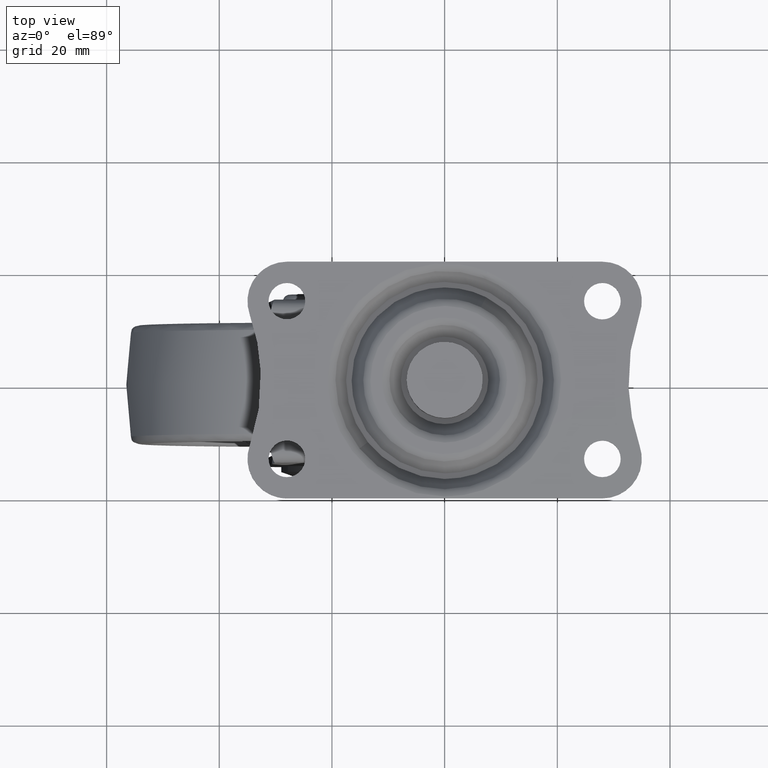
[diagram: clean part render]
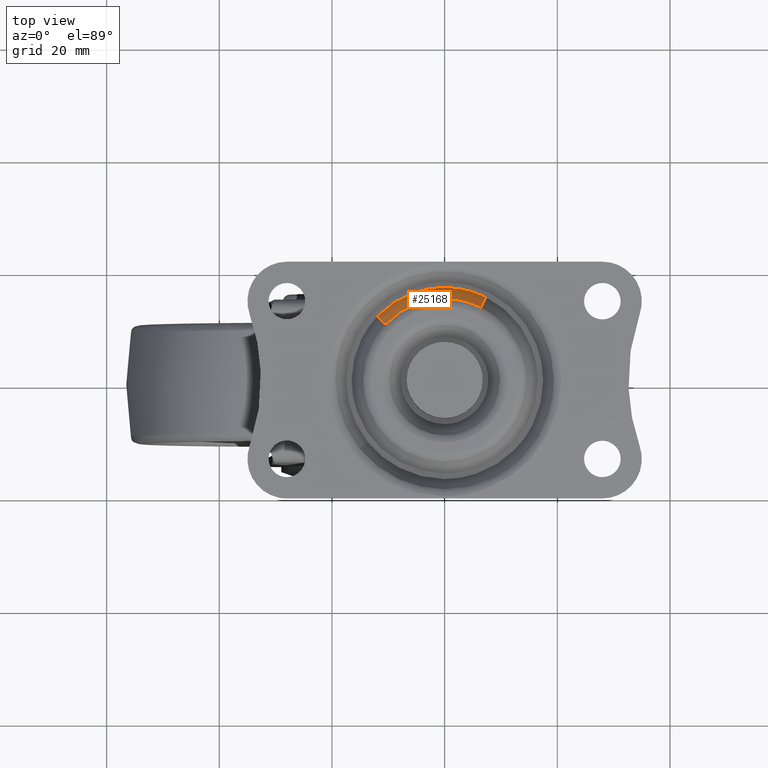
[diagram: same view with one face highlighted and labeled with its STEP entity id]
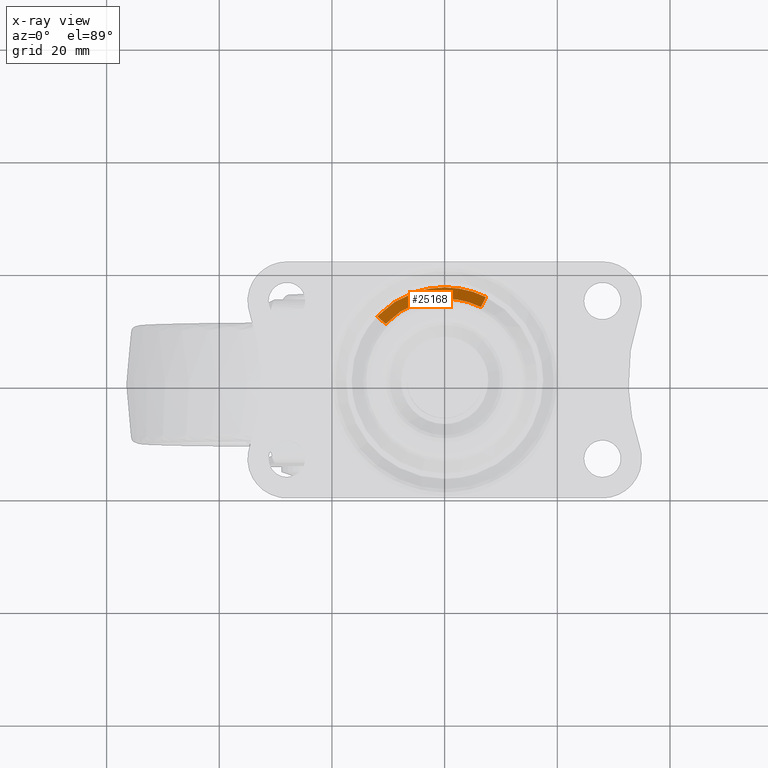
[diagram: x-ray of the same camera — body ghosted, the highlighted face saturated]
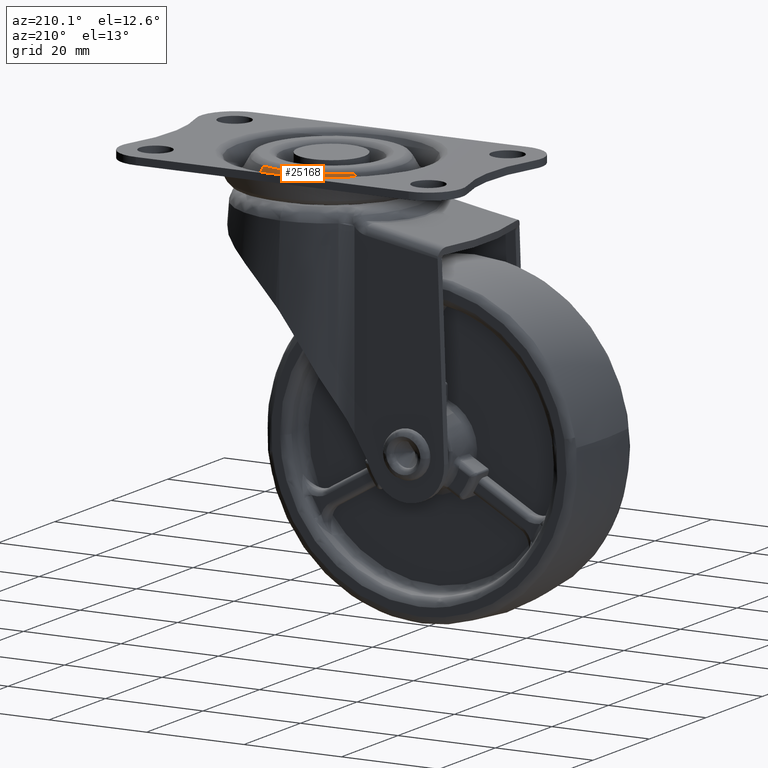
[diagram: same view with one face highlighted and labeled with its STEP entity id]
A machine part, top view. The second image highlights one B-rep face of the part: STEP entity #25168.
The next image is the same camera in x-ray: the body ghosted, the highlighted face saturated — about 0% of this face is hidden behind the body in this view.
A second angle (auxiliary view) of the same face is appended — the face is thin or edge-on in the first view.
In plain terms, the highlighted face is a freeform B-spline surface patch.
Its self-contained STEP definition (entity closure, byte-faithful):
#24967=CARTESIAN_POINT('',(6.428251837164304,12.941863865210420,0.750000000072999));
#24968=VERTEX_POINT('',#24967);
#25025=CARTESIAN_POINT('',(-10.481954876539580,9.947003767740339,0.749999999976701));
#25026=VERTEX_POINT('',#25025);
#25037=CARTESIAN_POINT('',(-11.968676693769449,11.357850092853390,-2.799999035047615));
#25038=VERTEX_POINT('',#25037);
#25039=CARTESIAN_POINT('',(-10.481954876539580,9.947003767740339,0.749999999976701));
#25040=CARTESIAN_POINT('',(-11.968676693769449,11.357850092853390,-2.799999035047615));
#25041=QUASI_UNIFORM_CURVE('',1,(#25039,#25040),.UNSPECIFIED.,.F.,.U.);
#25042=EDGE_CURVE('',#25026,#25038,#25041,.T.);
#25091=CARTESIAN_POINT('',(7.340011839151716,14.777491050076719,-2.799999402476213));
#25092=VERTEX_POINT('',#25091);
#25106=CARTESIAN_POINT('',(6.428251837164304,12.941863865210420,0.750000000072999));
#25107=CARTESIAN_POINT('',(7.340011839151716,14.777491050076719,-2.799999402476213));
#25108=QUASI_UNIFORM_CURVE('',1,(#25106,#25107),.UNSPECIFIED.,.F.,.U.);
#25109=EDGE_CURVE('',#24968,#25092,#25108,.T.);
#25114=CARTESIAN_POINT('',(-10.444786820340020,9.911732599393250,0.838749981129748));
#25115=CARTESIAN_POINT('',(-3.122037183512721,17.628300629090237,0.838749981129748));
#25116=CARTESIAN_POINT('',(6.405457842331795,12.895973196092392,0.838749981129748));
#25117=CARTESIAN_POINT('',(-12.006774379236800,11.394003446435770,-2.890967969925195));
#25118=CARTESIAN_POINT('',(-3.588928784360279,20.264561832000549,-2.890967969925195));
#25119=CARTESIAN_POINT('',(7.363375474434738,14.824528564301152,-2.890967969925195));
#25127=(BOUNDED_SURFACE()B_SPLINE_SURFACE(2,1,((#25114,#25117),(#25115,#25118),(#25116,#25119)),.UNSPECIFIED.,.F.,.F.,.U.)B_SPLINE_SURFACE_WITH_KNOTS((3,3),(2,2),(0.0,21.790544911978181),(0.0,4.306707326085903),.UNSPECIFIED.)GEOMETRIC_REPRESENTATION_ITEM()RATIONAL_B_SPLINE_SURFACE(((1.0,1.0),(0.765685424949238,0.765685424949238),(0.906274169979695,0.906274169979695)))REPRESENTATION_ITEM('')SURFACE());
#25128=CARTESIAN_POINT('',(-10.481954876539580,9.947003767740339,0.749999999976701));
#25129=CARTESIAN_POINT('',(-9.822749892884703,10.641845660442319,0.749999999977584));
#25130=CARTESIAN_POINT('',(-8.401886436201659,11.868200953977309,0.749999999980837));
#25131=CARTESIAN_POINT('',(-6.103702188679773,13.178873050009051,0.749999999989436));
#25132=CARTESIAN_POINT('',(-3.706958929874812,14.038283053051281,0.750000000000928));
#25133=CARTESIAN_POINT('',(-1.576472671035668,14.415582373956100,0.750000000013057));
#25134=CARTESIAN_POINT('',(0.436896035718645,14.478204719039789,0.750000000025981));
#25135=CARTESIAN_POINT('',(2.349017798227244,14.309218763958430,0.750000000039400));
#25136=CARTESIAN_POINT('',(4.406000535749067,13.822488803720370,0.750000000055318));
#25137=CARTESIAN_POINT('',(5.784921977395309,13.261442245978269,0.750000000067198));
#25138=CARTESIAN_POINT('',(6.428251837164304,12.941863865210420,0.750000000072999));
#25139=B_SPLINE_CURVE_WITH_KNOTS('',3,(#25128,#25129,#25130,#25131,#25132,#25133,#25134,#25135,#25136,#25137,#25138),.UNSPECIFIED.,.F.,.U.,(4,1,1,1,1,1,1,1,4),(0.000000059207583,2.873346260990132,5.603030600618206,7.901733388580949,10.487699182672230,12.068064133171591,13.935742826158441,16.234423810652320,18.389431974316061),.UNSPECIFIED.);
#25140=EDGE_CURVE('',#25026,#24968,#25139,.T.);
#25141=ORIENTED_EDGE('',*,*,#25140,.T.);
#25142=ORIENTED_EDGE('',*,*,#25109,.T.);
#25143=CARTESIAN_POINT('',(0.000001890424932,16.499999999999890,-2.799999239411660));
#25144=VERTEX_POINT('',#25143);
#25145=CARTESIAN_POINT('',(0.000001890424932,16.499999999999890,-2.799999239411660));
#25146=CARTESIAN_POINT('',(0.752738854043048,16.500024259481059,-2.799999256134354));
#25147=CARTESIAN_POINT('',(2.297821107086816,16.394102896775589,-2.799999290459661));
#25148=CARTESIAN_POINT('',(4.784678920833873,15.866949857063689,-2.799999345707317));
#25149=CARTESIAN_POINT('',(6.453002002005623,15.218176313553339,-2.799999382770551));
#25150=CARTESIAN_POINT('',(7.340011839151716,14.777491050076719,-2.799999402476213));
#25151=B_SPLINE_CURVE_WITH_KNOTS('',3,(#25145,#25146,#25147,#25148,#25149,#25150),.UNSPECIFIED.,.F.,.U.,(4,1,1,4),(8.132159E-009,2.258213918392650,4.635270586663292,7.606611427959813),.UNSPECIFIED.);
#25152=EDGE_CURVE('',#25144,#25092,#25151,.T.);
#25153=ORIENTED_EDGE('',*,*,#25152,.F.);
#25154=CARTESIAN_POINT('',(-11.968676693769449,11.357850092853390,-2.799999035047615));
#25155=CARTESIAN_POINT('',(-11.104678175528401,12.268687755023310,-2.799999049800300));
#25156=CARTESIAN_POINT('',(-9.328796621684999,13.756230467012440,-2.799999080123328));
#25157=CARTESIAN_POINT('',(-6.822811979811686,15.087122622121390,-2.799999122912723));
#25158=CARTESIAN_POINT('',(-4.523405702464298,15.914846054869310,-2.799999162174963));
#25159=CARTESIAN_POINT('',(-2.406206651487840,16.385526845718989,-2.799999198325835));
#25160=CARTESIAN_POINT('',(-0.767191845885403,16.500021551828610,-2.799999226311920));
#25161=CARTESIAN_POINT('',(0.000001890424932,16.499999999999890,-2.799999239411660));
#25162=B_SPLINE_CURVE_WITH_KNOTS('',3,(#25154,#25155,#25156,#25157,#25158,#25159,#25160,#25161),.UNSPECIFIED.,.F.,.U.,(4,1,1,1,1,4),(0.000000023415051,3.766239346141475,6.904757424305487,8.474020549157526,11.089475426252340,13.391062767378960),.UNSPECIFIED.);
#25163=EDGE_CURVE('',#25038,#25144,#25162,.T.);
#25164=ORIENTED_EDGE('',*,*,#25163,.F.);
#25165=ORIENTED_EDGE('',*,*,#25042,.F.);
#25166=EDGE_LOOP('',(#25141,#25142,#25153,#25164,#25165));
#25167=FACE_OUTER_BOUND('',#25166,.T.);
#25168=ADVANCED_FACE('',(#25167),#25127,.T.);